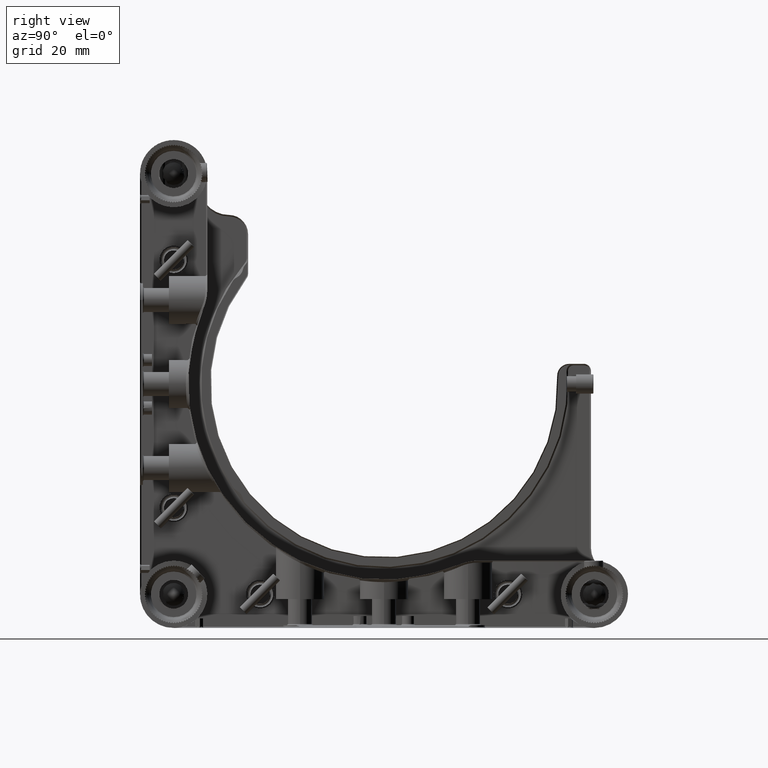
[diagram: clean part render]
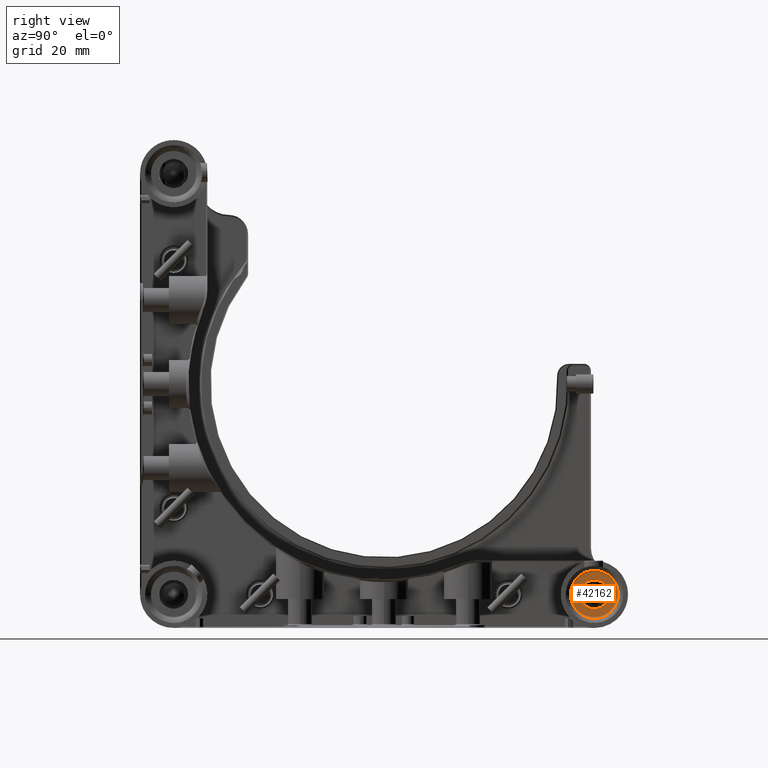
[diagram: same view with one face highlighted and labeled with its STEP entity id]
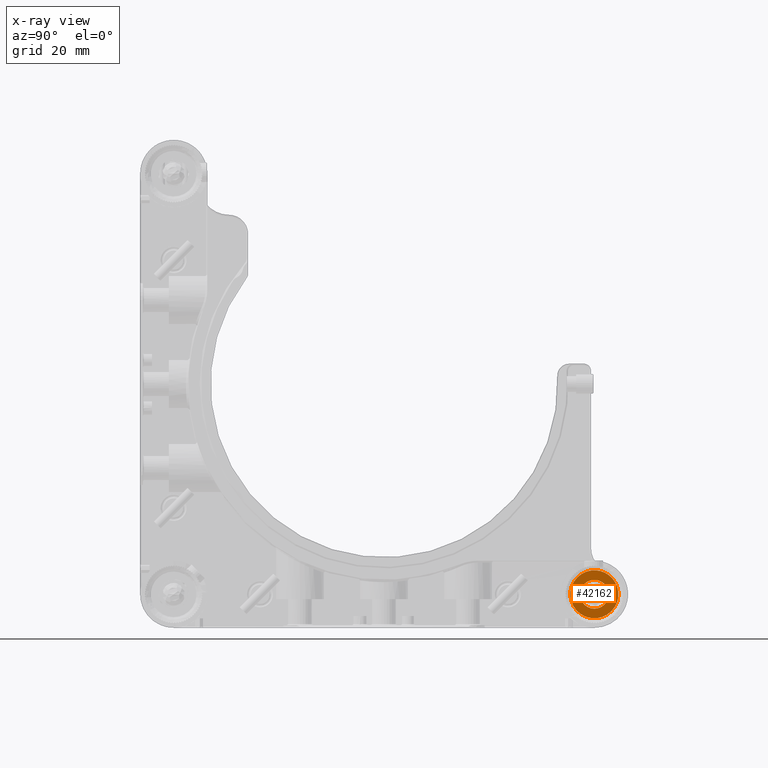
[diagram: x-ray of the same camera — body ghosted, the highlighted face saturated]
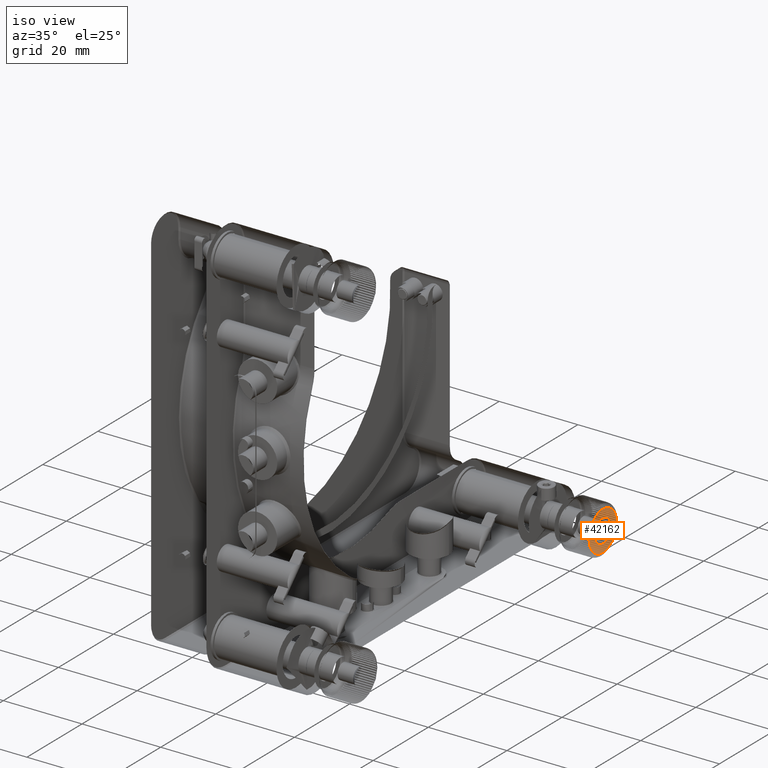
[diagram: same view with one face highlighted and labeled with its STEP entity id]
A machine part, right view. The second image highlights one B-rep face of the part: STEP entity #42162.
The next image is the same camera in x-ray: the body ghosted, the highlighted face saturated — about 0% of this face is hidden behind the body in this view.
A second angle (iso view) of the same face is appended — the face is thin or edge-on in the first view.
In plain terms, the highlighted planar face has unit normal (-1, 0, 0).
Its self-contained STEP definition (entity closure, byte-faithful):
#287 = CARTESIAN_POINT ( 'NONE',  ( 25.70182608337570684, 39.14051571760063553, -45.62806006536867898 ) ) ;
#551 = CARTESIAN_POINT ( 'NONE',  ( 25.70182608337570684, 40.25635426180293308, -47.33453870566199129 ) ) ;
#745 = CIRCLE ( 'NONE', #16378, 2.999999999944110041 ) ;
#831 = CARTESIAN_POINT ( 'NONE',  ( 25.70182608337569974, 45.13556481107929841, -48.61905584748821241 ) ) ;
#1071 = CARTESIAN_POINT ( 'NONE',  ( 25.70182608337570684, 39.97024385048975859, -40.58544074450800565 ) ) ;
#1090 = CARTESIAN_POINT ( 'NONE',  ( 25.70182608337570329, 45.38436869757371994, -48.54316955929252941 ) ) ;
#1333 = CARTESIAN_POINT ( 'NONE',  ( 25.70182608337569974, 41.73542058332501625, -39.24287120272687446 ) ) ;
#1353 = CARTESIAN_POINT ( 'NONE',  ( 25.70182608337571040, 45.22031400426104142, -48.59481080872494374 ) ) ;
#2394 = EDGE_LOOP ( 'NONE', ( #21313 ) ) ;
#2411 = CARTESIAN_POINT ( 'NONE',  ( 25.70182608337570684, 46.59303884351650282, -39.64698506411081524 ) ) ;
#2653 = DIRECTION ( 'NONE',  ( 1.000000000000000000, 0.000000000000000000, -0.000000000000000000 ) ) ;
#2947 = CARTESIAN_POINT ( 'NONE',  ( 25.70182608337569263, 48.76018462137125198, -44.43004903707687703 ) ) ;
#3036 = CARTESIAN_POINT ( 'NONE',  ( 25.70182608337569974, 47.64170357728951188, -47.00026696885843336 ) ) ;
#3208 = CARTESIAN_POINT ( 'NONE',  ( 25.70182608337569974, 48.45948428239921668, -41.97193993462708761 ) ) ;
#3494 = CARTESIAN_POINT ( 'NONE',  ( 25.70182608337571040, 45.70019166272841460, -39.16420858671259708 ) ) ;
#3828 = CARTESIAN_POINT ( 'NONE',  ( 25.70182608337570329, 46.61903850516053183, -47.94394627720141955 ) ) ;
#3959 = VERTEX_POINT ( 'NONE', #45657 ) ;
#4087 = CARTESIAN_POINT ( 'NONE',  ( 25.70182608337570684, 45.86457941668189875, -48.35712879727189772 ) ) ;
#4365 = CARTESIAN_POINT ( 'NONE',  ( 25.70182608337570684, 39.00518919127500084, -45.22031400425700554 ) ) ;
#4632 = CARTESIAN_POINT ( 'NONE',  ( 25.70182608337569974, 38.80869159504185717, -44.09738605651602938 ) ) ;
#4889 = CARTESIAN_POINT ( 'NONE',  ( 25.70182608337569619, 38.83227613322029015, -43.23024609208044211 ) ) ;
#5153 = CARTESIAN_POINT ( 'NONE',  ( 25.70182608337570684, 39.95829642271004900, -40.59973303114286836 ) ) ;
#5175 = CARTESIAN_POINT ( 'NONE',  ( 25.70182608337571040, 40.44049990574770703, -47.50707750211703484 ) ) ;
#5427 = CARTESIAN_POINT ( 'NONE',  ( 25.70182608337569974, 38.96475323635973353, -42.49079180139608525 ) ) ;
#5671 = CARTESIAN_POINT ( 'NONE',  ( 25.70182608337570684, 42.95668349927934315, -38.86652089937835797 ) ) ;
#5749 = DIRECTION ( 'NONE',  ( 1.526556658859590983E-16, 0.000000000000000000, 1.000000000000000000 ) ) ;
#6081 = EDGE_CURVE ( 'NONE', #17752, #8329, #42751, .T. ) ;
#7020 = CARTESIAN_POINT ( 'NONE',  ( 25.70182608337570684, 46.96968224187304486, -39.93300789662968953 ) ) ;
#7282 = CARTESIAN_POINT ( 'NONE',  ( 25.70182608337571040, 47.67752735315531964, -40.64213345568678903 ) ) ;
#7909 = CARTESIAN_POINT ( 'NONE',  ( 25.70182608337570684, 46.95786654431282869, -47.67752735315606571 ) ) ;
#8329 = VERTEX_POINT ( 'NONE', #9583 ) ;
#8428 = CARTESIAN_POINT ( 'NONE',  ( 25.70182608337570684, 44.14129435398128010, -48.78838195511904985 ) ) ;
#8705 = CARTESIAN_POINT ( 'NONE',  ( 25.70182608337569619, 39.24287120272801843, -45.86457941667726601 ) ) ;
#8963 = CARTESIAN_POINT ( 'NONE',  ( 25.70182608337569974, 44.09915171996910033, -48.79108486257310773 ) ) ;
#9222 = CARTESIAN_POINT ( 'NONE',  ( 25.70182608337569974, 40.78496228440672411, -47.79025262690449694 ) ) ;
#9453 = AXIS2_PLACEMENT_3D ( 'NONE', #26641, #9818, #5749 ) ;
#9500 = CARTESIAN_POINT ( 'NONE',  ( 25.70182608337569619, 44.20444357760635512, -48.78393341911252179 ) ) ;
#9583 = CARTESIAN_POINT ( 'NONE',  ( 25.70182608337570684, 39.06262119354222762, -42.20086209346262507 ) ) ;
#9744 = CARTESIAN_POINT ( 'NONE',  ( 25.70182608337570684, 42.46443518892206725, -38.98094415251171085 ) ) ;
#9818 = DIRECTION ( 'NONE',  ( -1.000000000000000000, 6.116679022007483969E-17, 1.526556658859590983E-16 ) ) ;
#10007 = CARTESIAN_POINT ( 'NONE',  ( 25.70182608337570329, 43.39555642239153599, -38.81606658088758621 ) ) ;
#10546 = CARTESIAN_POINT ( 'NONE',  ( 25.70182608337569974, 39.93302211053302386, -40.63030096486316722 ) ) ;
#10813 = CARTESIAN_POINT ( 'NONE',  ( 25.70182608337569974, 48.79130840495774635, -43.50261394348630972 ) ) ;
#11355 = CARTESIAN_POINT ( 'NONE',  ( 25.70182608337570329, 48.35712879727189062, -41.73542058332030535 ) ) ;
#11444 = CARTESIAN_POINT ( 'NONE',  ( 25.70182608337570684, 47.79020732730464971, -46.81509123560301333 ) ) ;
#11967 = CARTESIAN_POINT ( 'NONE',  ( 25.70182608337570684, 47.70458528130735942, -46.92367602511488656 ) ) ;
#12243 = CARTESIAN_POINT ( 'NONE',  ( 25.70182608337570684, 47.62975614951197656, -47.01455925549042547 ) ) ;
#13307 = CARTESIAN_POINT ( 'NONE',  ( 25.70182608337570684, 38.84801375247388222, -43.10849661823384338 ) ) ;
#13568 = CARTESIAN_POINT ( 'NONE',  ( 25.70182608337570329, 40.08587182946271810, -47.14854900931189263 ) ) ;
#13827 = CARTESIAN_POINT ( 'NONE',  ( 25.70182608337571040, 39.64706272055837388, -41.00686940792046187 ) ) ;
#13848 = CARTESIAN_POINT ( 'NONE',  ( 25.70182608337569974, 44.07677622807945284, -48.79237105601744418 ) ) ;
#14098 = CARTESIAN_POINT ( 'NONE',  ( 25.70182608337570684, 40.45145099068196970, -40.08587182946840954 ) ) ;
#14894 = CARTESIAN_POINT ( 'NONE',  ( 25.70182608337569974, 47.15950009425823453, -40.09292249788992279 ) ) ;
#15117 = DIRECTION ( 'NONE',  ( 0.000000000000000000, 0.000000000000000000, -1.000000000000000000 ) ) ;
#15151 = CARTESIAN_POINT ( 'NONE',  ( 25.70182608337569619, 48.70587850392477947, -44.81296655652142391 ) ) ;
#15706 = CARTESIAN_POINT ( 'NONE',  ( 25.70182608337570329, 48.73347910062177135, -42.95668349927989027 ) ) ;
#15965 = CARTESIAN_POINT ( 'NONE',  ( 25.70182608337569974, 43.52322377192041358, -38.80762894398257856 ) ) ;
#16058 = CARTESIAN_POINT ( 'NONE',  ( 25.70182608337570684, 48.53737880645775959, -45.39913790653737635 ) ) ;
#16319 = CARTESIAN_POINT ( 'NONE',  ( 25.70182608337570329, 47.14854900929936576, -47.51412817054895754 ) ) ;
#16378 = AXIS2_PLACEMENT_3D ( 'NONE', #39757, #2653, #15117 ) ;
#16848 = CARTESIAN_POINT ( 'NONE',  ( 25.70182608337570684, 38.81794360104623820, -44.22542859141677951 ) ) ;
#17390 = CARTESIAN_POINT ( 'NONE',  ( 25.70182608337570684, 40.59974163257169266, -47.64171085758236046 ) ) ;
#17644 = CARTESIAN_POINT ( 'NONE',  ( 25.70182608337571040, 39.65605372279126328, -46.61903850515472669 ) ) ;
#17752 = VERTEX_POINT ( 'NONE', #37232 ) ;
#17883 = CARTESIAN_POINT ( 'NONE',  ( 25.70182608337571395, 42.21563130243580986, -39.05683044070580223 ) ) ;
#17906 = CARTESIAN_POINT ( 'NONE',  ( 25.70182608337570684, 41.47007728431878348, -48.24444416619473941 ) ) ;
#18947 = CARTESIAN_POINT ( 'NONE',  ( 25.70182608337570684, 48.61905584748825504, -42.46443518892191804 ) ) ;
#19219 = CARTESIAN_POINT ( 'NONE',  ( 25.70182608337571040, 48.59481080872492242, -42.37968599574089268 ) ) ;
#19752 = CARTESIAN_POINT ( 'NONE',  ( 25.70182608337570684, 47.62474685619049808, -40.57843321045977802 ) ) ;
#20029 = CARTESIAN_POINT ( 'NONE',  ( 25.70182608337569619, 47.51412817054541193, -40.45145099069764427 ) ) ;
#20630 = CARTESIAN_POINT ( 'NONE',  ( 25.70182608337569263, 45.62806006537678627, -48.45948428239923800 ) ) ;
#21168 = CARTESIAN_POINT ( 'NONE',  ( 25.70182608337570684, 40.67635264631889669, -47.70460954895013828 ) ) ;
#21313 = ORIENTED_EDGE ( 'NONE', *, *, #29689, .T. ) ;
#21691 = CARTESIAN_POINT ( 'NONE',  ( 25.70182608337570684, 39.16426775352979206, -41.89973843360452577 ) ) ;
#21714 = CARTESIAN_POINT ( 'NONE',  ( 25.70182608337571395, 38.82920572201052778, -44.35133867430518961 ) ) ;
#21975 = CARTESIAN_POINT ( 'NONE',  ( 25.70182608337569974, 41.00696115649454754, -47.95301493589380470 ) ) ;
#22219 = CARTESIAN_POINT ( 'NONE',  ( 25.70182608337570329, 43.24866132568380550, -38.82920572201408049 ) ) ;
#23825 = CARTESIAN_POINT ( 'NONE',  ( 25.70182608337569619, 47.94394627720437541, -40.98096149484093331 ) ) ;
#24975 = CARTESIAN_POINT ( 'NONE',  ( 25.70182608337570329, 38.84508676133388150, -43.12976265652981311 ) ) ;
#25257 = CARTESIAN_POINT ( 'NONE',  ( 25.70182608337571395, 38.81148665327129521, -44.14131592977637553 ) ) ;
#25520 = CARTESIAN_POINT ( 'NONE',  ( 25.70182608337570329, 41.89980833728002807, -48.43579141329094284 ) ) ;
#25783 = CARTESIAN_POINT ( 'NONE',  ( 25.70182608337569974, 39.97525314381471162, -47.02156678954628433 ) ) ;
#26044 = CARTESIAN_POINT ( 'NONE',  ( 25.70182608337570329, 40.98096149484084805, -39.65605372279345886 ) ) ;
#26063 = CARTESIAN_POINT ( 'NONE',  ( 25.70182608337569619, 43.42232453405991777, -48.82611484910120936 ) ) ;
#26115 = FACE_BOUND ( 'NONE', #2394, .T. ) ;
#26300 = CARTESIAN_POINT ( 'NONE',  ( 25.70182608337570684, 41.97193993463536543, -39.14051571759864601 ) ) ;
#26375 = PLANE ( 'NONE',  #9453 ) ;
#26641 = CARTESIAN_POINT ( 'NONE',  ( 25.70182608337570329, 43.79999999999999716, -43.79999999999999716 ) ) ;
#27635 = CARTESIAN_POINT ( 'NONE',  ( 25.70182608337569619, 47.01455925549071679, -39.97024385048831618 ) ) ;
#28159 = CARTESIAN_POINT ( 'NONE',  ( 25.70182608337569974, 48.78851334672748408, -43.45868407021983870 ) ) ;
#28515 = CARTESIAN_POINT ( 'NONE',  ( 25.70182608337571040, 47.66697788946611780, -46.96969903513937794 ) ) ;
#28893 = ORIENTED_EDGE ( 'NONE', *, *, #49102, .T. ) ;
#29299 = CARTESIAN_POINT ( 'NONE',  ( 25.70182608337569619, 44.35133867431256505, -48.77079427798610567 ) ) ;
#29689 = EDGE_CURVE ( 'NONE', #3959, #3959, #745, .T. ) ;
#30062 = CARTESIAN_POINT ( 'NONE',  ( 25.70182608337570684, 40.64213345568681746, -39.92247264684520758 ) ) ;
#30080 = CARTESIAN_POINT ( 'NONE',  ( 25.70182608337569974, 39.92247264684574759, -46.95786654431427110 ) ) ;
#30596 = CARTESIAN_POINT ( 'NONE',  ( 25.70182608337570684, 39.89541471869117117, -40.67632397488947760 ) ) ;
#30851 = B_SPLINE_CURVE_WITH_KNOTS ( 'NONE', 3,
 ( #39246, #21691, #38184, #13827, #31144, #30596, #10546, #5153, #1071, #38438, #50616, #14098, #47102, #30062, #26044, #42522, #1333, #26300, #17883, #34392, #9744, #42779, #5671, #22219, #10007, #43042, #32475, #15965, #52212, #39515, #3494, #40312, #2411, #53007, #44111, #7020, #51958, #27635, #14894, #35738, #20029, #19752, #7282, #23825, #52759, #11355, #3208, #40047, #19219, #18947, #31664, #15706, #44631, #35483, #28159, #10813, #48693, #43568, #44368, #48152, #2947, #36531, #36272, #15151, #32213, #43830 ),
 .UNSPECIFIED., .F., .F.,
 ( 4, 1, 1, 1, 1, 2, 2, 1, 2, 2, 2, 1, 2, 2, 1, 1, 1, 2, 2, 2, 1, 1, 1, 1, 2, 2, 1, 2, 2, 2, 1, 2, 2, 1, 1, 2, 2, 1, 1, 1, 2, 2, 4 ),
 ( 0.000000000000000000, 0.06249999999999003575, 0.09374999999998540057, 0.1093749999999825279, 0.1171874999999809597, 0.1210937499999801686, 0.1249999999999793776, 0.1562499999999765465, 0.1718749999999756028, 0.1874999999999746314, 0.2499999999999715783, 0.2812499999999703570, 0.2968749999999703015, 0.3124999999999702460, 0.3437499999999702460, 0.3593749999999709677, 0.3671874999999719114, 0.3710937499999724110, 0.3749999999999729106, 0.4999999999999867883, 0.5624999999999928946, 0.5937499999999962252, 0.6093749999999975575, 0.6171874999999976685, 0.6210937499999986677, 0.6249999999999996669, 0.6562500000000031086, 0.6718750000000047740, 0.6875000000000065503, 0.7500000000000112133, 0.7812500000000133227, 0.7968750000000135447, 0.8125000000000136557, 0.8437500000000144329, 0.8593750000000155431, 0.8671875000000159872, 0.8750000000000163203, 0.9062500000000182077, 0.9218750000000189848, 0.9296875000000187628, 0.9335937500000186517, 0.9375000000000186517, 1.000000000000000000 ),
 .UNSPECIFIED. ) ;
#31144 = CARTESIAN_POINT ( 'NONE',  ( 25.70182608337571040, 39.80979267269262323, -40.78490876440518065 ) ) ;
#31664 = CARTESIAN_POINT ( 'NONE',  ( 25.70182608337569263, 48.68257427126150105, -42.70952370580899782 ) ) ;
#32213 = CARTESIAN_POINT ( 'NONE',  ( 25.70182608337570329, 48.63524676363925892, -45.10920819860689335 ) ) ;
#32475 = CARTESIAN_POINT ( 'NONE',  ( 25.70182608337570329, 43.50084828003024029, -38.80891513742692922 ) ) ;
#32559 = CARTESIAN_POINT ( 'NONE',  ( 25.70182608337570329, 48.43573224646660691, -45.70026156640613380 ) ) ;
#33898 = CARTESIAN_POINT ( 'NONE',  ( 25.70182608337570329, 39.05683044070735122, -45.38436869756737480 ) ) ;
#34153 = CARTESIAN_POINT ( 'NONE',  ( 25.70182608337570684, 40.63031775812898871, -47.66699210337117165 ) ) ;
#34392 = CARTESIAN_POINT ( 'NONE',  ( 25.70182608337571395, 42.37968599574504225, -39.00518919127399897 ) ) ;
#35146 = EDGE_LOOP ( 'NONE', ( #28893, #51846 ) ) ;
#35483 = CARTESIAN_POINT ( 'NONE',  ( 25.70182608337569974, 48.78205639895156054, -43.37457140857640070 ) ) ;
#35738 = CARTESIAN_POINT ( 'NONE',  ( 25.70182608337571040, 47.34364573820744226, -40.26546129435019594 ) ) ;
#36087 = CARTESIAN_POINT ( 'NONE',  ( 25.70182608337570684, 47.50707750210791858, -47.15950009426082090 ) ) ;
#36272 = CARTESIAN_POINT ( 'NONE',  ( 25.70182608337569974, 48.75198624752617604, -44.49150338176595909 ) ) ;
#36531 = CARTESIAN_POINT ( 'NONE',  ( 25.70182608337570684, 48.75491323866653204, -44.47023734346789325 ) ) ;
#37232 = CARTESIAN_POINT ( 'NONE',  ( 25.70182608337570684, 48.53737880645775959, -45.39913790653737635 ) ) ;
#37407 = CARTESIAN_POINT ( 'NONE',  ( 25.70182608337570329, 38.83981537862946709, -43.16995096291880429 ) ) ;
#37663 = CARTESIAN_POINT ( 'NONE',  ( 25.70182608337571040, 38.89412149607419877, -42.78703344348154047 ) ) ;
#38000 = FACE_OUTER_BOUND ( 'NONE', #35146, .T. ) ;
#38184 = CARTESIAN_POINT ( 'NONE',  ( 25.70182608337570329, 39.35565937574149586, -41.46995495288666689 ) ) ;
#38202 = CARTESIAN_POINT ( 'NONE',  ( 25.70182608337570684, 38.79826564382366172, -43.89517756675452631 ) ) ;
#38438 = CARTESIAN_POINT ( 'NONE',  ( 25.70182608337570684, 40.09292249787852569, -40.44049990575182818 ) ) ;
#39246 = CARTESIAN_POINT ( 'NONE',  ( 25.70182608337570684, 39.06262119354222762, -42.20086209346262507 ) ) ;
#39515 = CARTESIAN_POINT ( 'NONE',  ( 25.70182608337570329, 44.79703039415533539, -38.85944640720151000 ) ) ;
#39757 = CARTESIAN_POINT ( 'NONE',  ( 25.70182608337745833, 43.79999999999999716, -43.80000000000000426 ) ) ;
#40047 = CARTESIAN_POINT ( 'NONE',  ( 25.70182608337570684, 48.54316955929251520, -42.21563130242930129 ) ) ;
#40312 = CARTESIAN_POINT ( 'NONE',  ( 25.70182608337569974, 46.12992271569594749, -39.35555583381141531 ) ) ;
#41746 = CARTESIAN_POINT ( 'NONE',  ( 25.70182608337569974, 42.80296960582781907, -48.74055359279146415 ) ) ;
#42162 = ADVANCED_FACE ( 'NONE', ( #26115, #38000 ), #26375, .T. ) ;
#42261 = CARTESIAN_POINT ( 'NONE',  ( 25.70182608337571040, 38.98094415251305378, -45.13556481108213347 ) ) ;
#42522 = CARTESIAN_POINT ( 'NONE',  ( 25.70182608337570684, 41.27194456935791322, -39.47247578396394374 ) ) ;
#42542 = CARTESIAN_POINT ( 'NONE',  ( 25.70182608337569974, 38.86652089937362575, -44.64331650070596424 ) ) ;
#42751 = B_SPLINE_CURVE_WITH_KNOTS ( 'NONE', 3,
 ( #16058, #32559, #49567, #49042, #11444, #11967, #28515, #3036, #12243, #36087, #52566, #16319, #44997, #7909, #3828, #45250, #4087, #20630, #1090, #1353, #831, #50118, #46578, #29299, #9500, #8428, #8963, #13848, #26063, #41746, #25520, #17906, #21975, #9222, #21168, #34153, #17390, #45514, #5175, #551, #13568, #25783, #30080, #17644, #50907, #8705, #287, #33898, #4365, #42261, #46318, #42542, #21714, #16848, #25257, #4632, #38202, #50378, #45801, #4889, #37407, #24975, #13307, #37663, #5427, #50639 ),
 .UNSPECIFIED., .F., .F.,
 ( 4, 1, 1, 1, 1, 2, 2, 1, 2, 2, 2, 1, 2, 2, 1, 1, 1, 2, 2, 2, 1, 1, 1, 1, 2, 2, 1, 2, 2, 2, 1, 2, 2, 1, 1, 2, 2, 1, 1, 1, 2, 2, 4 ),
 ( 0.000000000000000000, 0.06249999999998284705, 0.09374999999997461753, 0.1093749999999705097, 0.1171874999999694134, 0.1210937499999693023, 0.1249999999999691913, 0.1562499999999683309, 0.1718749999999679146, 0.1874999999999675260, 0.2499999999999666378, 0.2812499999999664713, 0.2968749999999666378, 0.3124999999999668043, 0.3437499999999679701, 0.3593749999999680256, 0.3671874999999686917, 0.3710937499999683031, 0.3749999999999679701, 0.4999999999999692468, 0.5624999999999693578, 0.5937499999999694689, 0.6093749999999695799, 0.6171874999999685807, 0.6210937499999685807, 0.6249999999999684697, 0.6562499999999710232, 0.6718749999999722444, 0.6874999999999734657, 0.7499999999999779066, 0.7812499999999803491, 0.7968749999999821254, 0.8124999999999839018, 0.8437499999999878986, 0.8593749999999894529, 0.8671874999999901190, 0.8749999999999908962, 0.9062499999999924505, 0.9218749999999925615, 0.9296874999999926725, 0.9335937499999926725, 0.9374999999999926725, 1.000000000000000000 ),
 .UNSPECIFIED. ) ;
#42779 = CARTESIAN_POINT ( 'NONE',  ( 25.70182608337570684, 42.70952370580869939, -38.91742572873856432 ) ) ;
#43042 = CARTESIAN_POINT ( 'NONE',  ( 25.70182608337569974, 43.45870564601745656, -38.81161804488102263 ) ) ;
#43568 = CARTESIAN_POINT ( 'NONE',  ( 25.70182608337570329, 48.80247498092419534, -43.94706719444159404 ) ) ;
#43830 = CARTESIAN_POINT ( 'NONE',  ( 25.70182608337570684, 48.53737880645775959, -45.39913790653737635 ) ) ;
#44111 = CARTESIAN_POINT ( 'NONE',  ( 25.70182608337570684, 46.92364735368456508, -39.89539045105133397 ) ) ;
#44368 = CARTESIAN_POINT ( 'NONE',  ( 25.70182608337569974, 48.78274063887148060, -44.22897658614962779 ) ) ;
#44631 = CARTESIAN_POINT ( 'NONE',  ( 25.70182608337571395, 48.77079427798604883, -43.24866132568420340 ) ) ;
#44997 = CARTESIAN_POINT ( 'NONE',  ( 25.70182608337571395, 47.02156678953834046, -47.62474685619272208 ) ) ;
#45250 = CARTESIAN_POINT ( 'NONE',  ( 25.70182608337570329, 46.32805543062825393, -48.12752421603848774 ) ) ;
#45514 = CARTESIAN_POINT ( 'NONE',  ( 25.70182608337569974, 40.58544074450851724, -47.62975614951080416 ) ) ;
#45657 = CARTESIAN_POINT ( 'NONE',  ( 25.70182608337745833, 43.79999999999999716, -46.79999999994411297 ) ) ;
#45801 = CARTESIAN_POINT ( 'NONE',  ( 25.70182608337569263, 38.81725936113065956, -43.37102341383807413 ) ) ;
#46318 = CARTESIAN_POINT ( 'NONE',  ( 25.70182608337569974, 38.91742572873587847, -44.89047629418291052 ) ) ;
#46578 = CARTESIAN_POINT ( 'NONE',  ( 25.70182608337569974, 44.64331650071580526, -48.73347910062189925 ) ) ;
#47102 = CARTESIAN_POINT ( 'NONE',  ( 25.70182608337571040, 40.57843321044979490, -39.97525314381832828 ) ) ;
#48152 = CARTESIAN_POINT ( 'NONE',  ( 25.70182608337569619, 48.76772386678095472, -44.36975390791239704 ) ) ;
#48693 = CARTESIAN_POINT ( 'NONE',  ( 25.70182608337570684, 48.80173435617799527, -43.70482243323613147 ) ) ;
#49042 = CARTESIAN_POINT ( 'NONE',  ( 25.70182608337570329, 47.95293727943689532, -46.59313059209353725 ) ) ;
#49102 = EDGE_CURVE ( 'NONE', #8329, #17752, #30851, .T. ) ;
#49567 = CARTESIAN_POINT ( 'NONE',  ( 25.70182608337570329, 48.24434062425219594, -46.13004504713198628 ) ) ;
#50118 = CARTESIAN_POINT ( 'NONE',  ( 25.70182608337570329, 44.89047629418850249, -48.68257427126156500 ) ) ;
#50378 = CARTESIAN_POINT ( 'NONE',  ( 25.70182608337570684, 38.79752501907866247, -43.65293280554205779 ) ) ;
#50616 = CARTESIAN_POINT ( 'NONE',  ( 25.70182608337571040, 40.26546129433025811, -40.25635426181017351 ) ) ;
#50639 = CARTESIAN_POINT ( 'NONE',  ( 25.70182608337570684, 39.06262119354222762, -42.20086209346262507 ) ) ;
#50907 = CARTESIAN_POINT ( 'NONE',  ( 25.70182608337570684, 39.47247578396168421, -46.32805543063751230 ) ) ;
#51846 = ORIENTED_EDGE ( 'NONE', *, *, #6081, .T. ) ;
#51958 = CARTESIAN_POINT ( 'NONE',  ( 25.70182608337569974, 47.00025836742933194, -39.95828914241807439 ) ) ;
#52212 = CARTESIAN_POINT ( 'NONE',  ( 25.70182608337571040, 44.17767546594355821, -38.77388515089862864 ) ) ;
#52566 = CARTESIAN_POINT ( 'NONE',  ( 25.70182608337570329, 47.33453870564601829, -47.34364573821193289 ) ) ;
#52759 = CARTESIAN_POINT ( 'NONE',  ( 25.70182608337569974, 48.12752421603850905, -41.27194456936735634 ) ) ;
#53007 = CARTESIAN_POINT ( 'NONE',  ( 25.70182608337569974, 46.81503771559972193, -39.80974737309821165 ) ) ;